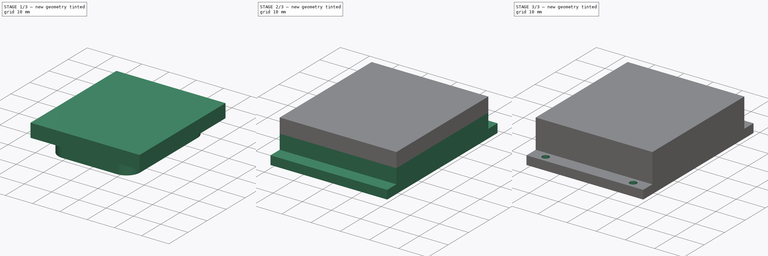
[diagram: build sequence overview — one tinted view per stage of 3, left to right]
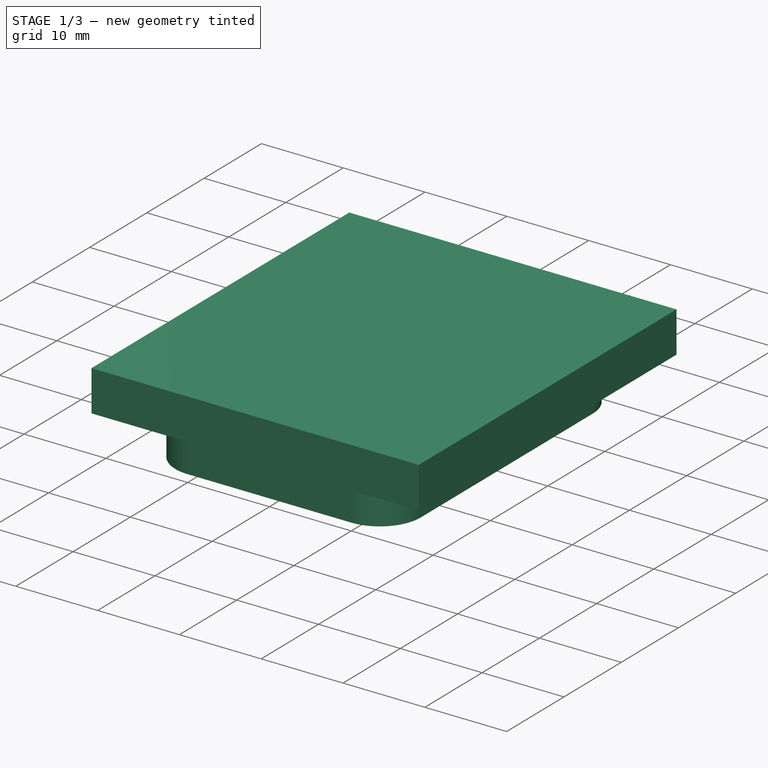
[diagram: stage 1 of 3 — iso view after this stage's code; geometry added in this stage tinted green]
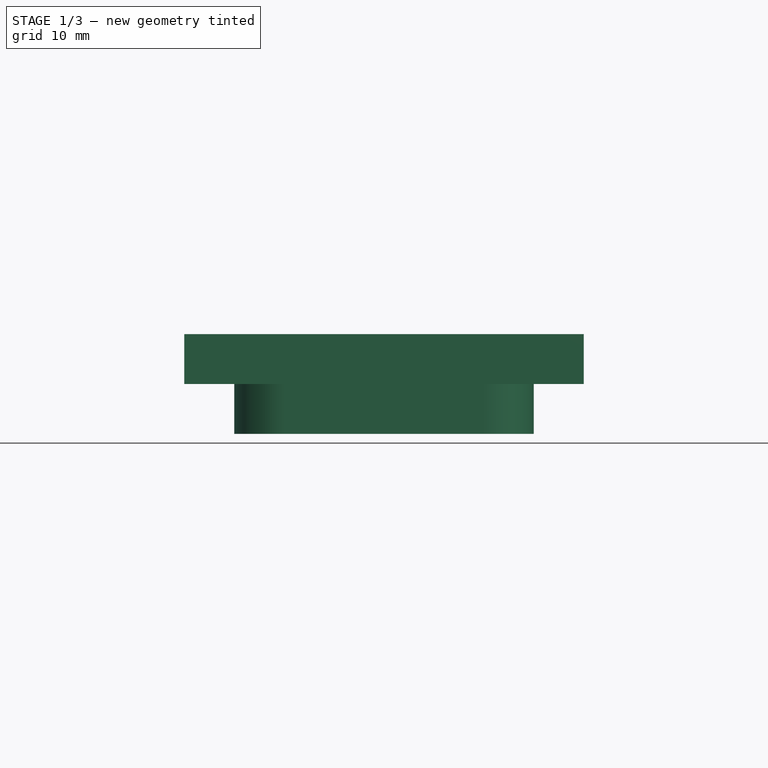
[diagram: stage 1 of 3 — front view after this stage's code; geometry added in this stage tinted green]
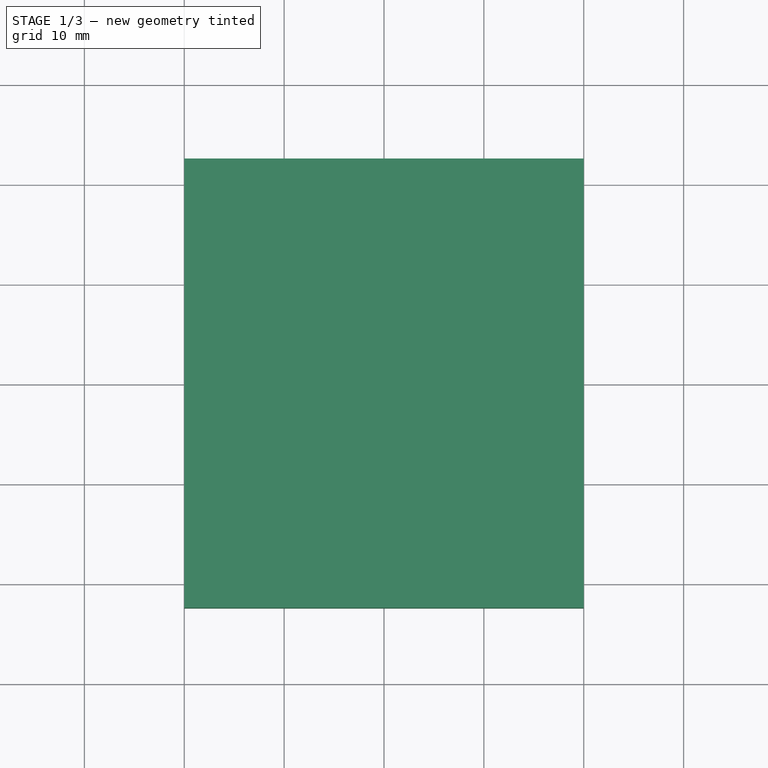
[diagram: stage 1 of 3 — top view after this stage's code; geometry added in this stage tinted green]
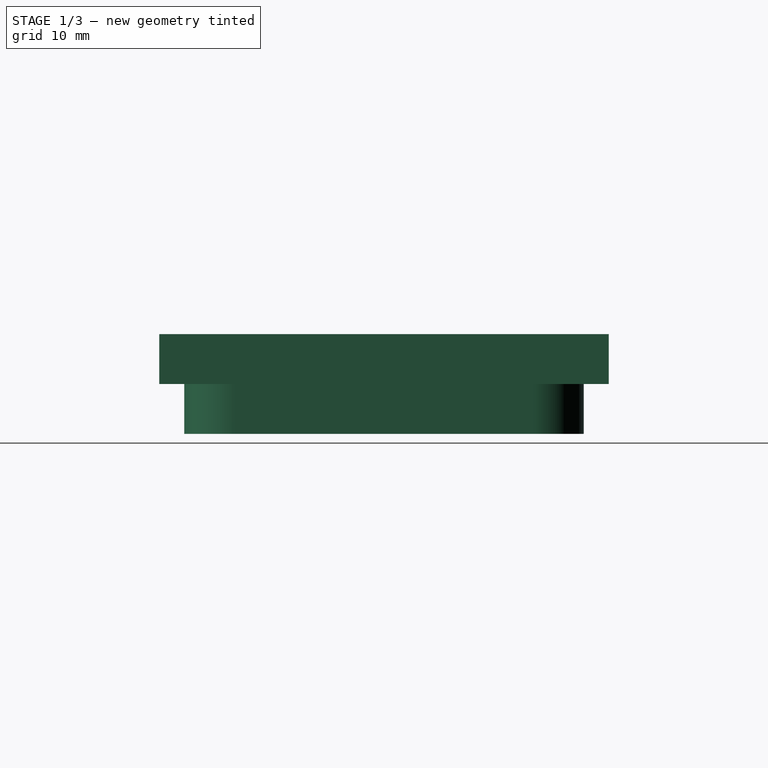
[diagram: stage 1 of 3 — right view after this stage's code; geometry added in this stage tinted green]
FCSTD DOCUMENT  (FreeCAD 0.21R33771 (Git))
Label: Centellador
License: All rights reserved
LicenseURL: http://en.wikipedia.org/wiki/All_rights_reserved
objects: Sketcher::SketchObject×6, PartDesign::Pad×5, PartDesign::Body×2, PartDesign::Hole×1
note: 20 computed .brp shape members not serialized (recipe doc carries the construction recipe); baked Part::Feature solids carry a one-line shape summary decoded from their .brp

FEATURE [PartDesign::Body] Body  label="Cuerpo"
  Group = -> [Sketch,Pad]
  Origin = -> Origin
  Tip = -> Pad
FEATURE [Sketcher::SketchObject] Sketch006
  FullyConstrained = true
  MapMode = 5
  Support = -> [XY_Plane002]
  sketch-geometry (9):
    g0: LineSegment StartX=15 StartY=-15 StartZ=0 EndX=15 EndY=15 EndZ=0
    g1: LineSegment StartX=10 StartY=20 StartZ=0 EndX=-10 EndY=20 EndZ=0
    g2: LineSegment StartX=-15 StartY=15 StartZ=0 EndX=-15 EndY=-15 EndZ=0
    g3: LineSegment StartX=-10 StartY=-20 StartZ=0 EndX=10 EndY=-20 EndZ=0
    g4: GeomPoint X=0 Y=0 Z=0
    g5: ArcOfCircle CenterX=-10 CenterY=-15 CenterZ=0 NormalX=0 NormalY=0 NormalZ=1 AngleXU=0 Radius=5 StartAngle=3.14159 EndAngle=4.71239
    g6: ArcOfCircle CenterX=10 CenterY=-15 CenterZ=0 NormalX=0 NormalY=0 NormalZ=1 AngleXU=0 Radius=5 StartAngle=4.71239 EndAngle=6.28319
    g7: ArcOfCircle CenterX=-10 CenterY=15 CenterZ=0 NormalX=0 NormalY=0 NormalZ=1 AngleXU=0 Radius=5 StartAngle=1.5708 EndAngle=3.14159
    g8: ArcOfCircle CenterX=10 CenterY=15 CenterZ=0 NormalX=0 NormalY=0 NormalZ=1 AngleXU=0 Radius=5 StartAngle=-6.2e-15 EndAngle=1.5708
  constraints (21):
    c: Horizontal(g1)
    c: Horizontal(g3)
    c: Vertical(g0)
    c: Vertical(g2)
    c: Coincident(g4,g-1)
    c: Distance(g5,g3) = 5
    c: Tangent(g3,g5) = -1.5708
    c: Tangent(g2,g5) = -1.5708
    c: Tangent(g0,g6) = -1.5708
    c: Tangent(g3,g6) = -1.5708
    c: Distance(g3,g6) = 5
    c: Tangent(g1,g7) = -1.5708
    c: Tangent(g2,g7) = -1.5708
    c: Distance(g1,g7) = 5
    c: Tangent(g0,g8) = -1.5708
    c: Tangent(g1,g8) = -1.5708
    c: Distance(g1,g8) = 5
    c: DistanceX(g4,g0) = 15
    c: DistanceX(g2,g0) = 30
    c: DistanceY(g4,g1) = 20
    c: DistanceY(g3,g1) = 40
FEATURE [PartDesign::Pad] Pad004
  Direction = (0,0,1)
  Length = 5
  Length2 = 10
  Profile = -> Sketch006
  ReferenceAxis = -> Sketch006 [N_Axis]
  Type = 0
FEATURE [Sketcher::SketchObject] Sketch007
  FullyConstrained = true
  MapMode = 5
  Placement = pos=(0,0,5) rot=(0,0,1;0rad)
  Support = -> [Pad004]
  sketch-geometry (5):
    g0: LineSegment StartX=-20 StartY=-22.5 StartZ=0 EndX=-20 EndY=22.5 EndZ=0
    g1: LineSegment StartX=-20 StartY=22.5 StartZ=0 EndX=20 EndY=22.5 EndZ=0
    g2: LineSegment StartX=20 StartY=22.5 StartZ=0 EndX=20 EndY=-22.5 EndZ=0
    g3: LineSegment StartX=20 StartY=-22.5 StartZ=0 EndX=-20 EndY=-22.5 EndZ=0
    g4: GeomPoint X=0 Y=0 Z=0
  constraints (12):
    c: Coincident(g0,g1)
    c: Coincident(g1,g2)
    c: Coincident(g2,g3)
    c: Coincident(g3,g0)
    c: Horizontal(g1)
    c: Horizontal(g3)
    c: Vertical(g0)
    c: Vertical(g2)
    c: Symmetric(g1,g0,g4)
    c: Coincident(g4,g-1)
    c: Distance(g0) = 45
    c: Distance(g1) = 40
FEATURE [PartDesign::Pad] Pad005
  BaseFeature = -> Pad004
  Direction = (0,0,1)
  Length = 5
  Length2 = 10
  Profile = -> Sketch007
  ReferenceAxis = -> Sketch007 [N_Axis]
  Type = 0
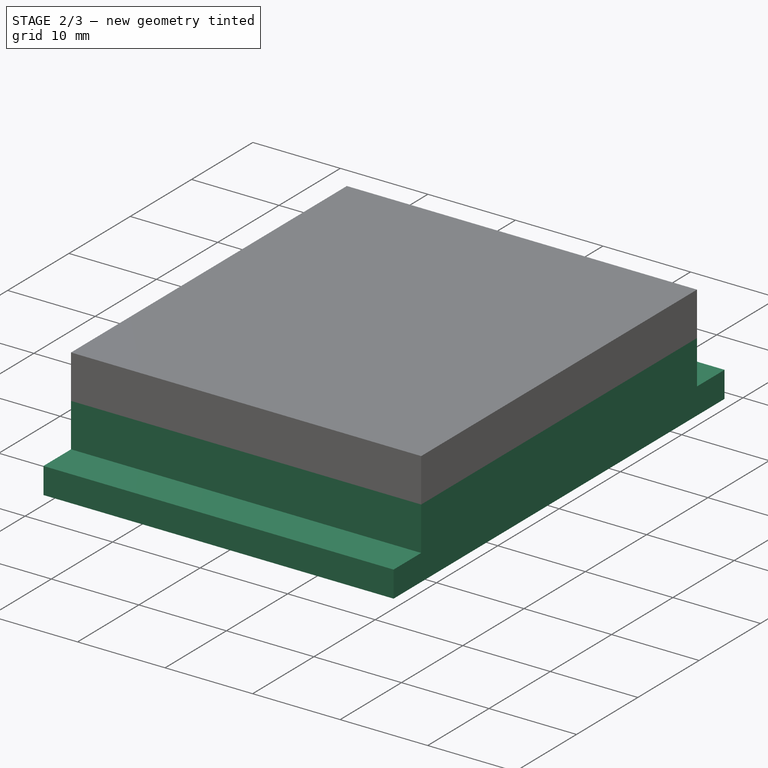
[diagram: stage 2 of 3 — iso view after this stage's code; geometry added in this stage tinted green]
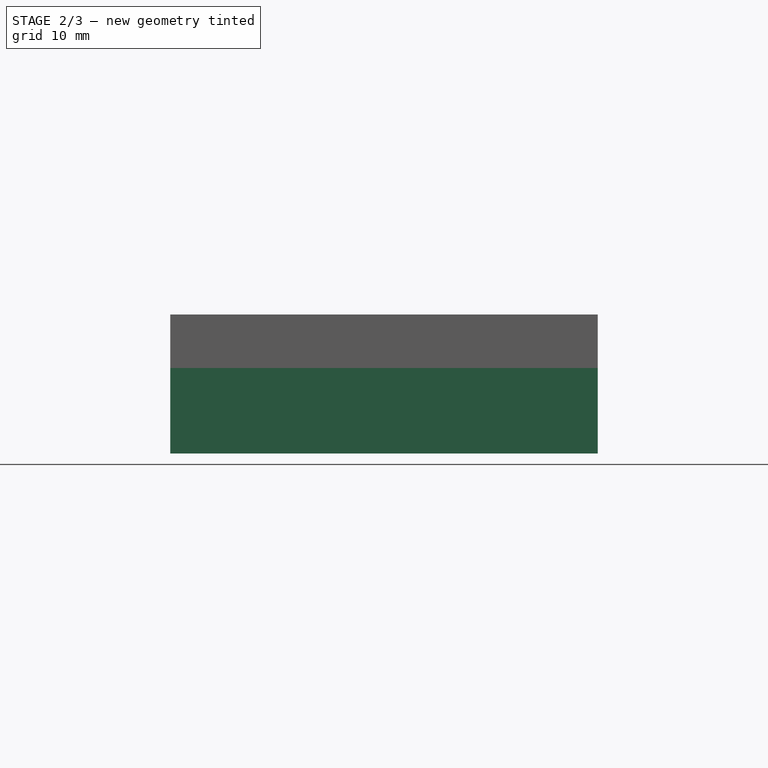
[diagram: stage 2 of 3 — front view after this stage's code; geometry added in this stage tinted green]
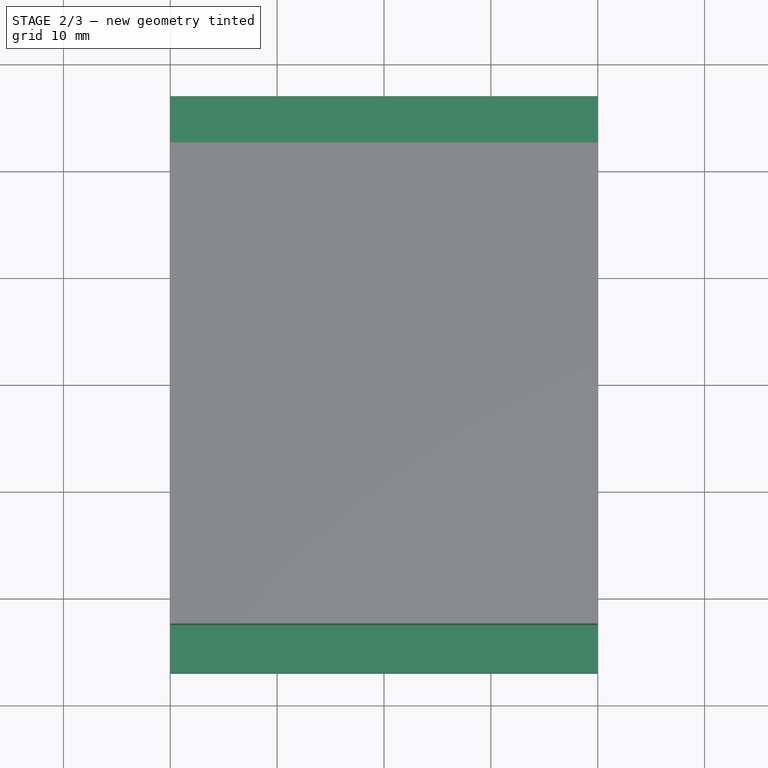
[diagram: stage 2 of 3 — top view after this stage's code; geometry added in this stage tinted green]
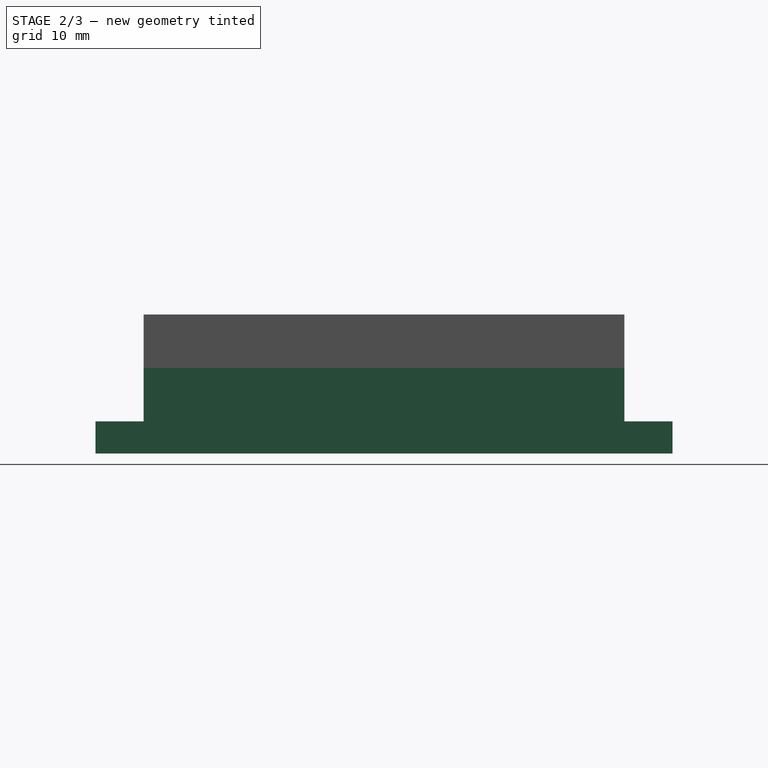
[diagram: stage 2 of 3 — right view after this stage's code; geometry added in this stage tinted green]
FEATURE [Sketcher::SketchObject] Sketch008
  FullyConstrained = true
  MapMode = 5
  Placement = pos=(0,0,5) rot=(1,0,0;3.14159rad)
  Support = -> [Pad005]
  sketch-geometry (10):
    g0: LineSegment StartX=-20 StartY=-22.5 StartZ=0 EndX=-20 EndY=22.5 EndZ=0
    g1: LineSegment StartX=-20 StartY=22.5 StartZ=0 EndX=20 EndY=22.5 EndZ=0
    g2: LineSegment StartX=20 StartY=22.5 StartZ=0 EndX=20 EndY=-22.5 EndZ=0
    g3: LineSegment StartX=20 StartY=-22.5 StartZ=0 EndX=-20 EndY=-22.5 EndZ=0
    g4: GeomPoint X=0 Y=0 Z=0
    g5: LineSegment StartX=-15 StartY=-20 StartZ=0 EndX=-15 EndY=20 EndZ=0
    g6: LineSegment StartX=-15 StartY=20 StartZ=0 EndX=15 EndY=20 EndZ=0
    g7: LineSegment StartX=15 StartY=20 StartZ=0 EndX=15 EndY=-20 EndZ=0
    g8: LineSegment StartX=15 StartY=-20 StartZ=0 EndX=-15 EndY=-20 EndZ=0
    g9: GeomPoint X=0 Y=0 Z=0
  constraints (24):
    c: Coincident(g0,g1)
    c: Coincident(g1,g2)
    c: Coincident(g2,g3)
    c: Coincident(g3,g0)
    c: Horizontal(g1)
    c: Horizontal(g3)
    c: Vertical(g0)
    c: Vertical(g2)
    c: Symmetric(g1,g0,g4)
    c: Coincident(g4,g-1)
    c: Distance(g1) = 40
    c: Distance(g2) = 45
    c: Coincident(g5,g6)
    c: Coincident(g6,g7)
    c: Coincident(g7,g8)
    c: Coincident(g8,g5)
    c: Horizontal(g6)
    c: Horizontal(g8)
    c: Vertical(g5)
    c: Vertical(g7)
    c: Symmetric(g6,g5,g9)
    c: Coincident(g9,g4)
    c: Distance(g6) = 30
    c: Distance(g7) = 40
FEATURE [PartDesign::Pad] Pad006
  BaseFeature = -> Pad005
  Direction = (0,0,-1)
  Length = 5
  Length2 = 10
  Profile = -> Sketch008
  ReferenceAxis = -> Sketch008 [N_Axis]
  Type = 0
FEATURE [Sketcher::SketchObject] Sketch009
  FullyConstrained = true
  MapMode = 5
  Placement = pos=(0,0,0) rot=(1,0,0;3.14159rad)
  Support = -> [Pad006]
  sketch-geometry (10):
    g0: LineSegment StartX=-15 StartY=-20 StartZ=0 EndX=-15 EndY=20 EndZ=0
    g1: LineSegment StartX=-15 StartY=20 StartZ=0 EndX=15 EndY=20 EndZ=0
    g2: LineSegment StartX=15 StartY=20 StartZ=0 EndX=15 EndY=-20 EndZ=0
    g3: LineSegment StartX=15 StartY=-20 StartZ=0 EndX=-15 EndY=-20 EndZ=0
    g4: GeomPoint X=0 Y=0 Z=0
    g5: LineSegment StartX=-20 StartY=-27 StartZ=0 EndX=-20 EndY=27 EndZ=0
    g6: LineSegment StartX=-20 StartY=27 StartZ=0 EndX=20 EndY=27 EndZ=0
    g7: LineSegment StartX=20 StartY=27 StartZ=0 EndX=20 EndY=-27 EndZ=0
    g8: LineSegment StartX=20 StartY=-27 StartZ=0 EndX=-20 EndY=-27 EndZ=0
    g9: GeomPoint X=0 Y=0 Z=0
  constraints (24):
    c: Coincident(g0,g1)
    c: Coincident(g1,g2)
    c: Coincident(g2,g3)
    c: Coincident(g3,g0)
    c: Horizontal(g1)
    c: Horizontal(g3)
    c: Vertical(g0)
    c: Vertical(g2)
    c: Symmetric(g1,g0,g4)
    c: Coincident(g4,g-1)
    c: Distance(g1) = 30
    c: Distance(g2) = 40
    c: Coincident(g5,g6)
    c: Coincident(g6,g7)
    c: Coincident(g7,g8)
    c: Coincident(g8,g5)
    c: Horizontal(g6)
    c: Horizontal(g8)
    c: Vertical(g5)
    c: Vertical(g7)
    c: Symmetric(g6,g5,g9)
    c: Coincident(g9,g4)
    c: Distance(g6) = 40
    c: Distance(g7) = 54
FEATURE [PartDesign::Pad] Pad007
  BaseFeature = -> Pad006
  Direction = (0,0,-1)
  Length = 3
  Length2 = 10
  Profile = -> Sketch009
  ReferenceAxis = -> Sketch009 [N_Axis]
  Type = 0
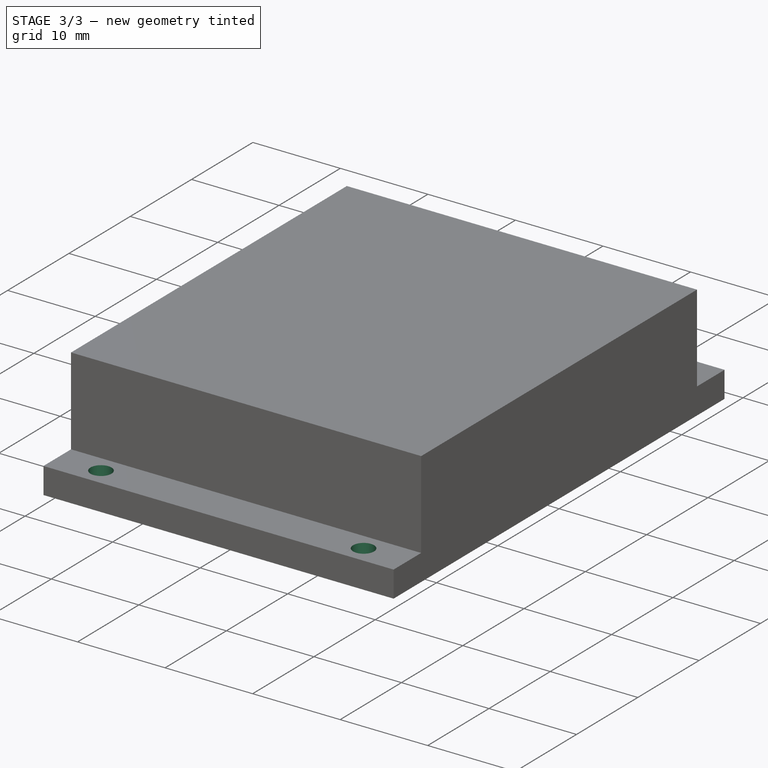
[diagram: stage 3 of 3 — iso view after this stage's code; geometry added in this stage tinted green]
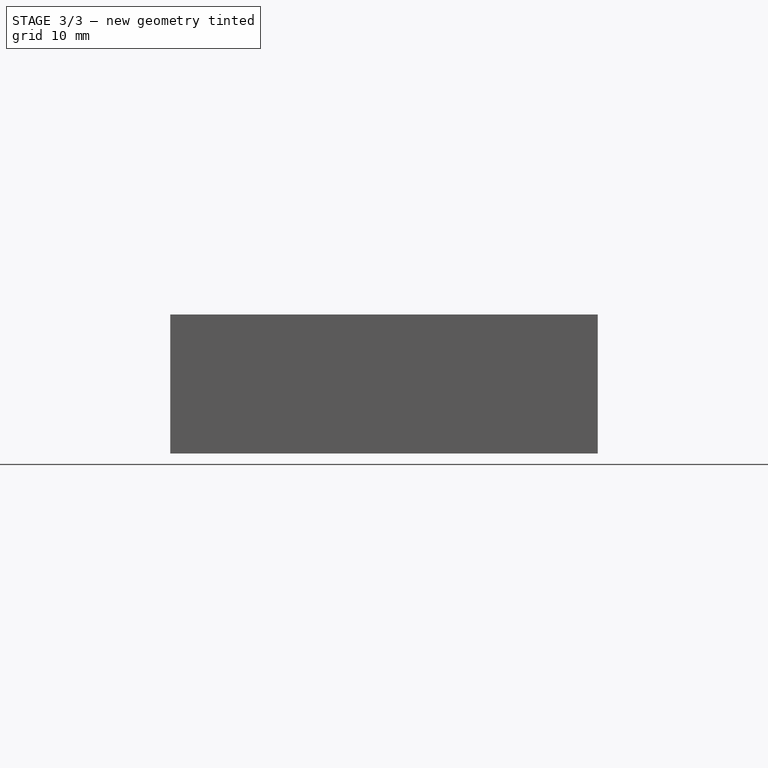
[diagram: stage 3 of 3 — front view after this stage's code; geometry added in this stage tinted green]
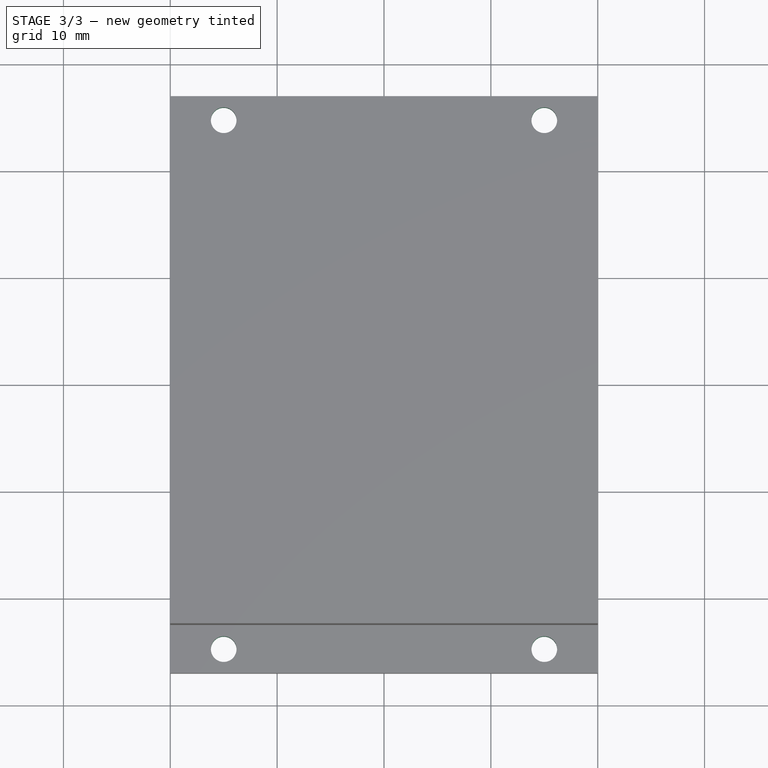
[diagram: stage 3 of 3 — top view after this stage's code; geometry added in this stage tinted green]
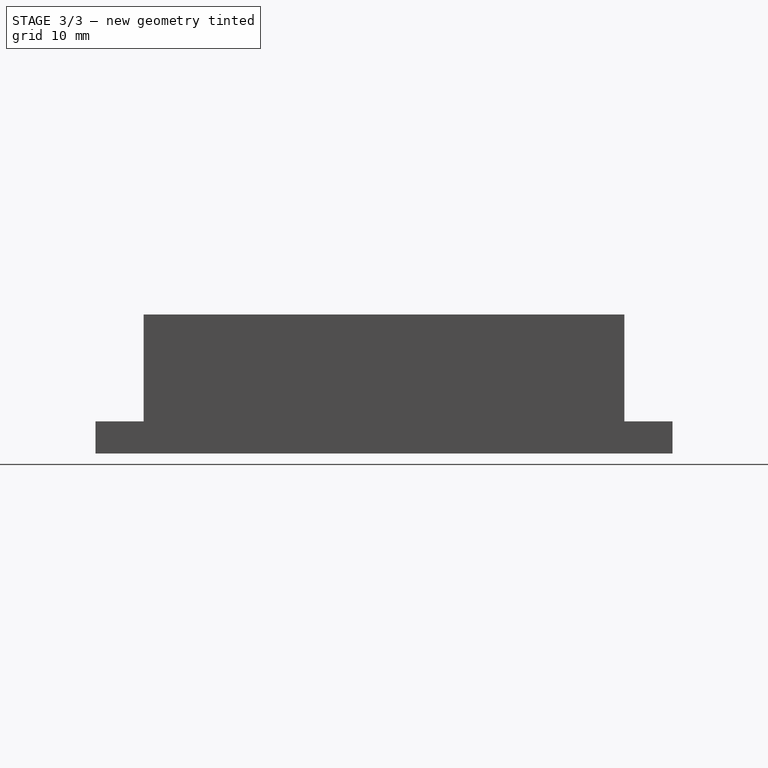
[diagram: stage 3 of 3 — right view after this stage's code; geometry added in this stage tinted green]
FEATURE [Sketcher::SketchObject] Sketch
  FullyConstrained = true
  MapMode = 5
  Support = -> [XY_Plane]
  sketch-geometry (9):
    g0: LineSegment StartX=15 StartY=-15 StartZ=0 EndX=15 EndY=15 EndZ=0
    g1: LineSegment StartX=10 StartY=20 StartZ=0 EndX=-10 EndY=20 EndZ=0
    g2: LineSegment StartX=-15 StartY=15 StartZ=0 EndX=-15 EndY=-15 EndZ=0
    g3: LineSegment StartX=-10 StartY=-20 StartZ=0 EndX=10 EndY=-20 EndZ=0
    g4: GeomPoint X=0 Y=0 Z=0
    g5: ArcOfCircle CenterX=-10 CenterY=-15 CenterZ=0 NormalX=0 NormalY=0 NormalZ=1 AngleXU=0 Radius=5 StartAngle=3.14159 EndAngle=4.71239
    g6: ArcOfCircle CenterX=10 CenterY=-15 CenterZ=0 NormalX=0 NormalY=0 NormalZ=1 AngleXU=0 Radius=5 StartAngle=4.71239 EndAngle=6.28319
    g7: ArcOfCircle CenterX=-10 CenterY=15 CenterZ=0 NormalX=0 NormalY=0 NormalZ=1 AngleXU=0 Radius=5 StartAngle=1.5708 EndAngle=3.14159
    g8: ArcOfCircle CenterX=10 CenterY=15 CenterZ=0 NormalX=0 NormalY=0 NormalZ=1 AngleXU=0 Radius=5 StartAngle=-6.2e-15 EndAngle=1.5708
  constraints (21):
    c: Horizontal(g1)
    c: Horizontal(g3)
    c: Vertical(g0)
    c: Vertical(g2)
    c: Coincident(g4,g-1)
    c: Distance(g5,g3) = 5
    c: Tangent(g3,g5) = -1.5708
    c: Tangent(g2,g5) = -1.5708
    c: Tangent(g0,g6) = -1.5708
    c: Tangent(g3,g6) = -1.5708
    c: Distance(g3,g6) = 5
    c: Tangent(g1,g7) = -1.5708
    c: Tangent(g2,g7) = -1.5708
    c: Distance(g1,g7) = 5
    c: Tangent(g0,g8) = -1.5708
    c: Tangent(g1,g8) = -1.5708
    c: Distance(g1,g8) = 5
    c: DistanceX(g4,g0) = 15
    c: DistanceX(g2,g0) = 30
    c: DistanceY(g4,g1) = 20
    c: DistanceY(g3,g1) = 40
FEATURE [PartDesign::Pad] Pad
  Direction = (0,0,1)
  Length = 5
  Length2 = 10
  Profile = -> Sketch
  ReferenceAxis = -> Sketch [N_Axis]
  Type = 0
FEATURE [Sketcher::SketchObject] Sketch010
  FullyConstrained = true
  MapMode = 5
  Support = -> [Pad007]
  sketch-geometry (8):
    g0: GeomPoint X=-15 Y=-24.75 Z=0
    g1: GeomPoint X=15 Y=-24.75 Z=0
    g2: GeomPoint X=-15 Y=24.75 Z=0
    g3: GeomPoint X=15 Y=24.75 Z=0
    g4: Circle CenterX=-15 CenterY=-24.75 CenterZ=0 NormalX=0 NormalY=0 NormalZ=1 AngleXU=0 Radius=1
    g5: Circle CenterX=15 CenterY=-24.75 CenterZ=0 NormalX=0 NormalY=0 NormalZ=1 AngleXU=0 Radius=1
    g6: Circle CenterX=15 CenterY=24.75 CenterZ=0 NormalX=0 NormalY=0 NormalZ=1 AngleXU=0 Radius=1
    g7: Circle CenterX=-15 CenterY=24.75 CenterZ=0 NormalX=0 NormalY=0 NormalZ=1 AngleXU=0 Radius=1
  constraints (16):
    c: Distance(g0,g-2) = 15
    c: Distance(g1,g-2) = 15
    c: Distance(g2,g-2) = 15
    c: Distance(g3,g-2) = 15
    c: Distance(g2,g-1) = 24.75
    c: Distance(g3,g-1) = 24.75
    c: Distance(g0,g-1) = 24.75
    c: Distance(g1,g-1) = 24.75
    c: Coincident(g4,g0)
    c: Coincident(g5,g1)
    c: Coincident(g6,g3)
    c: Coincident(g7,g2)
    c: Equal(g4,g7)
    c: Equal(g7,g6)
    c: Equal(g6,g5)
    c: Diameter(g4) = 2
FEATURE [PartDesign::Hole] Hole001
  BaseFeature = -> Pad007
  CustomThreadClearance = 0
  Depth = 25
  DepthType = 0
  Diameter = 2.4
  DrillForDepth = false
  DrillPoint = 1
  DrillPointAngle = 118
  HoleCutCountersinkAngle = 90
  HoleCutCustomValues = false
  HoleCutDepth = 1
  HoleCutDiameter = 3
  HoleCutType = 0
  ModelThread = false
  Profile = -> Sketch010
  Tapered = false
  TaperedAngle = 90
  ThreadClass = 0
  ThreadDepth = 25
  ThreadDepthType = 0
  ThreadDirection = 0
  ThreadFit = 0
  ThreadSize = 6
  ThreadType = 1
  Threaded = false
  UseCustomThreadClearance = false
  expr: HoleCutDepth = 1
  expr: HoleCutDiameter = 3
FEATURE [PartDesign::Body] Body002  label="Cuerpo002"
  Group = -> [Sketch006,Pad004,Sketch007,Pad005,Sketch008,Pad006,Sketch009,Pad007,Sketch010,Hole001]
  Origin = -> Origin002
  Tip = -> Hole001
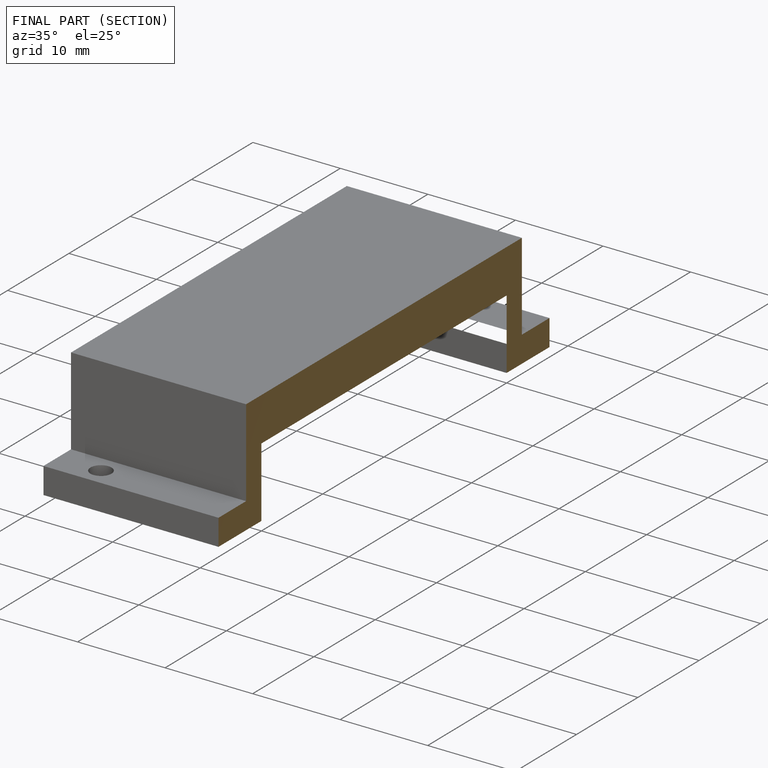
[diagram: finished part — half-section view (interior)]
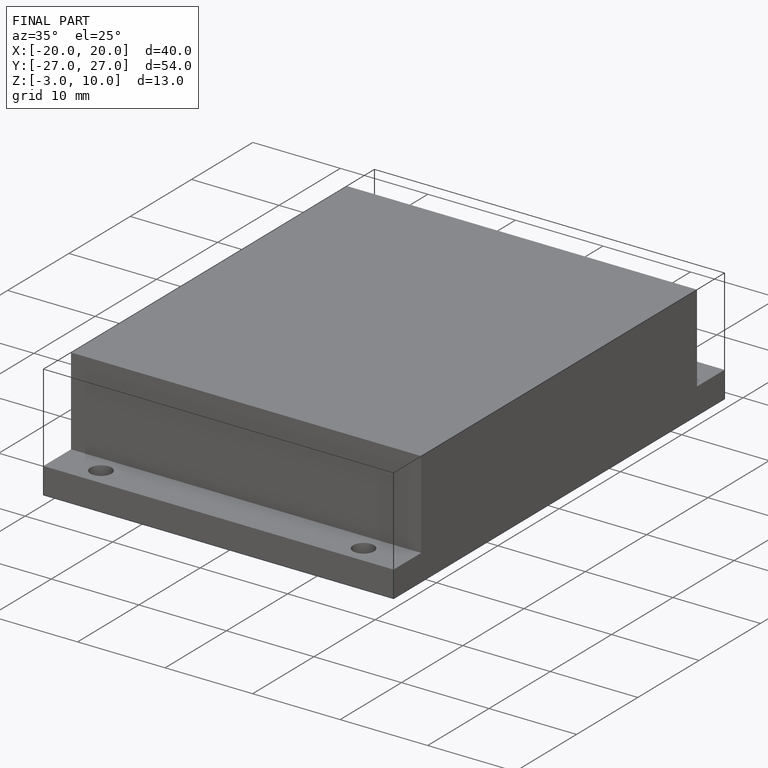
[diagram: finished part — iso view with bounding-box wireframe]
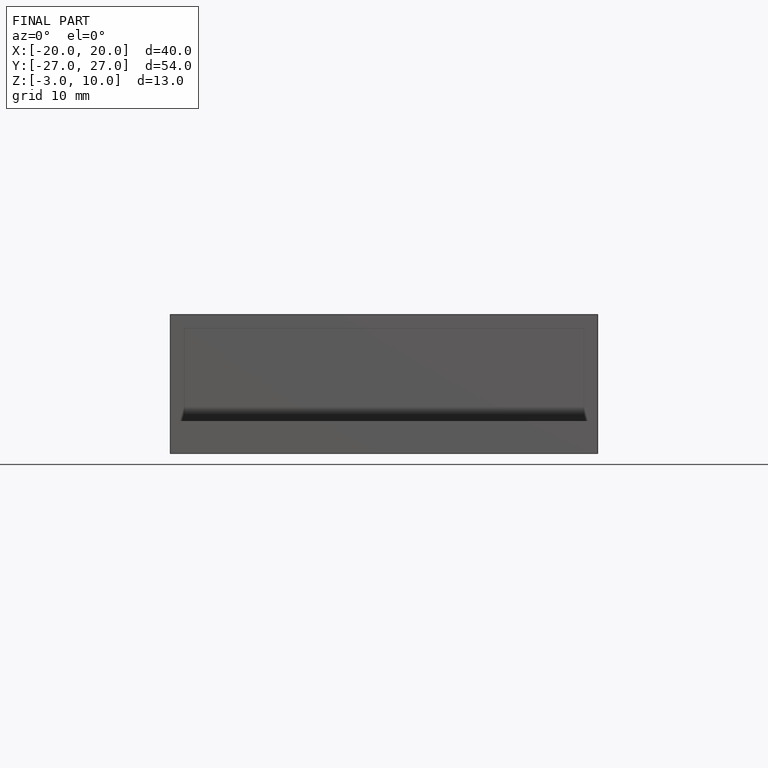
[diagram: finished part — front view with bounding-box wireframe]
